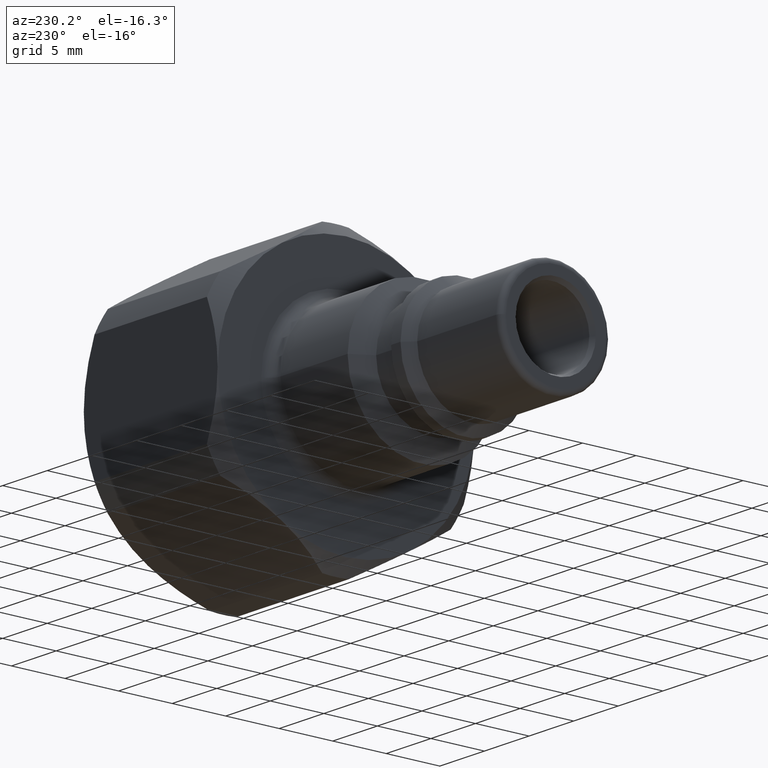
[diagram: clean part render]
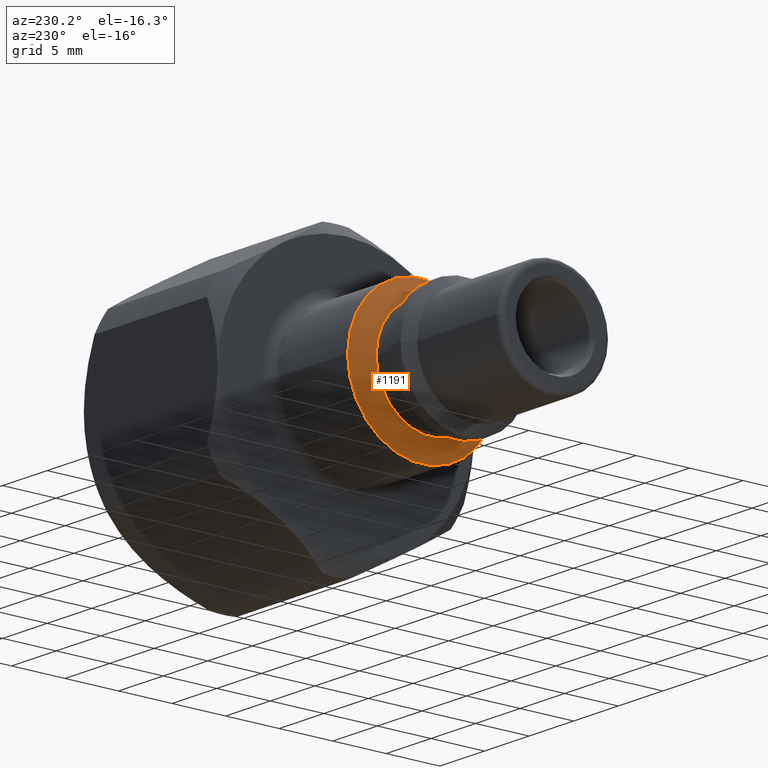
[diagram: same view with one face highlighted and labeled with its STEP entity id]
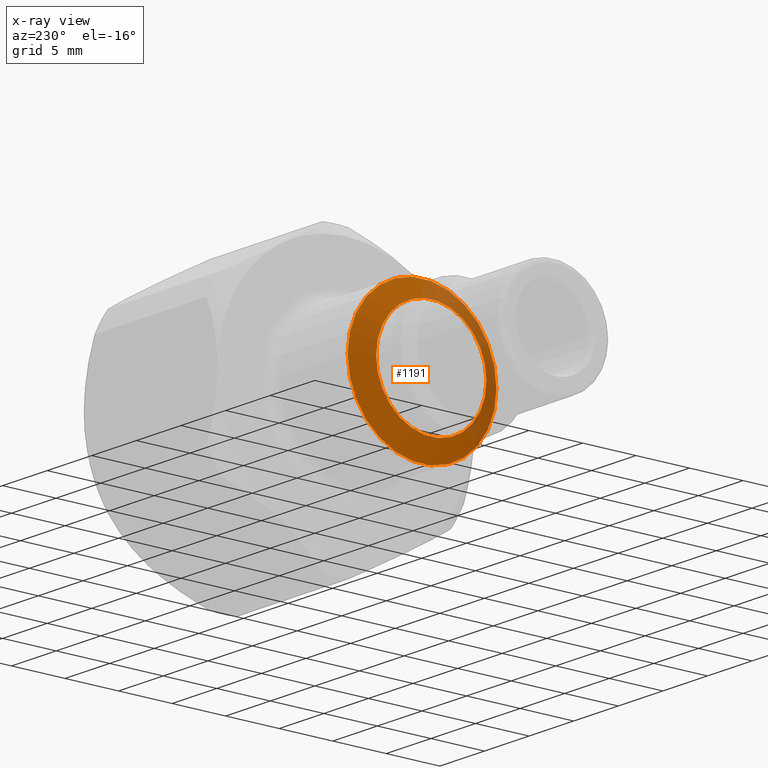
[diagram: x-ray of the same camera — body ghosted, the highlighted face saturated]
A machine part, auxiliary view. The second image highlights one B-rep face of the part: STEP entity #1191.
The next image is the same camera in x-ray: the body ghosted, the highlighted face saturated — about 22% of this face is hidden behind the body in this view.
In plain terms, the highlighted conical surface has half-angle 60 deg.
Its self-contained STEP definition (entity closure, byte-faithful):
#929=CARTESIAN_POINT('',(14.989230484541325,6.950000000000001,0.0));
#930=VERTEX_POINT('',#929);
#931=CARTESIAN_POINT('',(14.989230484541325,0.0,0.0));
#932=DIRECTION('',(1.0,0.0,0.0));
#933=DIRECTION('',(0.0,1.0,0.0));
#934=AXIS2_PLACEMENT_3D('',#931,#932,#933);
#935=CIRCLE('',#934,6.950000000000001);
#936=EDGE_CURVE('',#930,#930,#935,.T.);
#1165=CARTESIAN_POINT('',(13.949999999999999,5.150000000000000,0.0));
#1166=VERTEX_POINT('',#1165);
#1167=CARTESIAN_POINT('',(13.949999999999999,0.0,0.0));
#1168=DIRECTION('',(1.0,0.0,0.0));
#1169=DIRECTION('',(0.0,1.0,0.0));
#1170=AXIS2_PLACEMENT_3D('',#1167,#1168,#1169);
#1171=CIRCLE('',#1170,5.150000000000000);
#1172=EDGE_CURVE('',#1166,#1166,#1171,.T.);
#1180=CARTESIAN_POINT('',(14.469615242270661,0.0,0.0));
#1181=DIRECTION('',(1.0,0.0,0.0));
#1182=DIRECTION('',(0.0,1.0,0.0));
#1183=AXIS2_PLACEMENT_3D('',#1180,#1181,#1182);
#1184=CONICAL_SURFACE('',#1183,6.050000000000000,60.000000000000057);
#1185=ORIENTED_EDGE('',*,*,#936,.F.);
#1186=EDGE_LOOP('',(#1185));
#1187=FACE_OUTER_BOUND('',#1186,.T.);
#1188=ORIENTED_EDGE('',*,*,#1172,.T.);
#1189=EDGE_LOOP('',(#1188));
#1190=FACE_BOUND('',#1189,.T.);
#1191=ADVANCED_FACE('',(#1187,#1190),#1184,.T.);